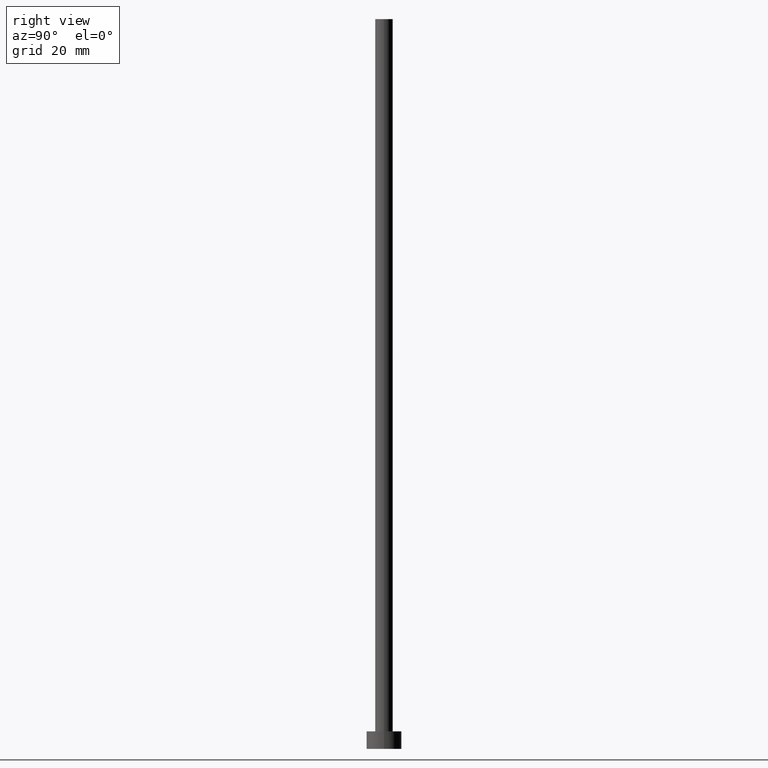
[diagram: clean part render]
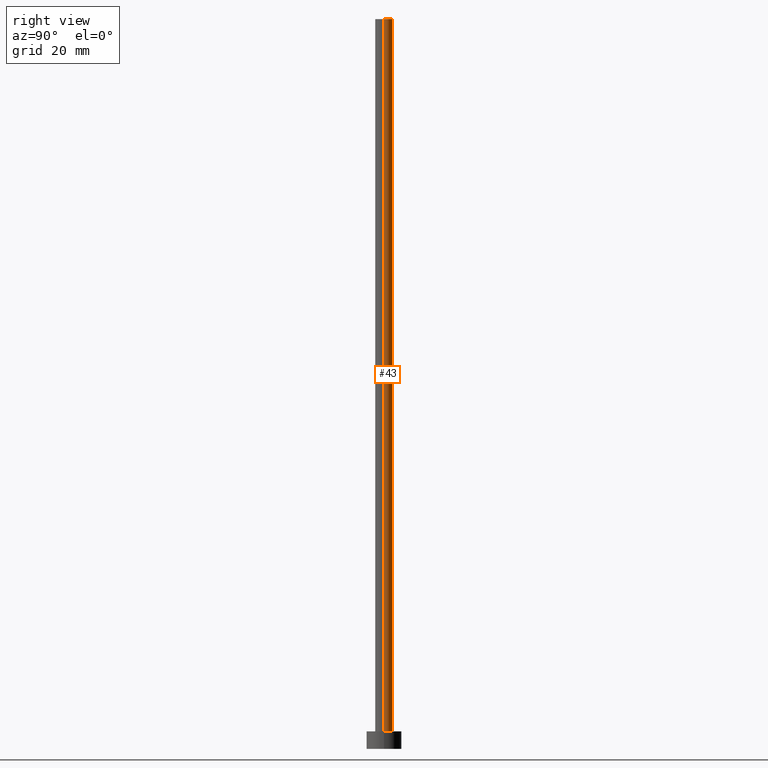
[diagram: same view with one face highlighted and labeled with its STEP entity id]
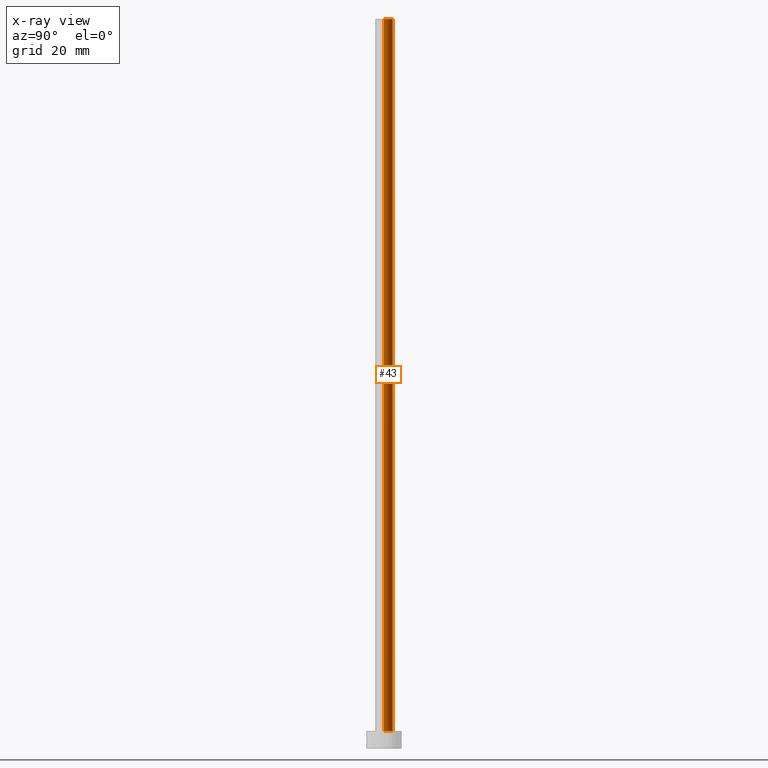
[diagram: x-ray of the same camera — body ghosted, the highlighted face saturated]
A machine part, right view. The second image highlights one B-rep face of the part: STEP entity #43.
The next image is the same camera in x-ray: the body ghosted, the highlighted face saturated — about 0% of this face is hidden behind the body in this view.
In plain terms, the highlighted cylindrical surface (edge-blend (fillet) strip) has radius 1.5 mm, axis along (-0, -0, -1).
Its self-contained STEP definition (entity closure, byte-faithful):
#13 = VECTOR ( 'NONE', #228, 1000.000000000000000 ) ;
#20 = CARTESIAN_POINT ( 'NONE',  ( 0.000000000000000000, 0.000000000000000000, 125.0000000000000000 ) ) ;
#21 = DIRECTION ( 'NONE',  ( 1.000000000000000000, 0.000000000000000000, 0.000000000000000000 ) ) ;
#23 = CARTESIAN_POINT ( 'NONE',  ( 0.000000000000000000, 0.000000000000000000, 125.0000000000000000 ) ) ;
#38 = AXIS2_PLACEMENT_3D ( 'NONE', #23, #178, #224 ) ;
#40 = EDGE_LOOP ( 'NONE', ( #188, #213, #194, #57 ) ) ;
#41 = VERTEX_POINT ( 'NONE', #58 ) ;
#43 = ADVANCED_FACE ( 'NONE', ( #239 ), #61, .T. ) ;
#44 = LINE ( 'NONE', #169, #133 ) ;
#48 = CARTESIAN_POINT ( 'NONE',  ( 1.500000000000000222, 1.836970198721029934E-16, 3.000000000000000000 ) ) ;
#55 = VERTEX_POINT ( 'NONE', #48 ) ;
#56 = CIRCLE ( 'NONE', #144, 1.500000000000000222 ) ;
#57 = ORIENTED_EDGE ( 'NONE', *, *, #190, .F. ) ;
#58 = CARTESIAN_POINT ( 'NONE',  ( -1.500000000000000222, 0.000000000000000000, 125.0000000000000000 ) ) ;
#61 = CYLINDRICAL_SURFACE ( 'NONE', #38, 1.500000000000000222 ) ;
#69 = AXIS2_PLACEMENT_3D ( 'NONE', #173, #155, #245 ) ;
#77 = CARTESIAN_POINT ( 'NONE',  ( -1.500000000000000222, 0.000000000000000000, 3.000000000000000000 ) ) ;
#90 = LINE ( 'NONE', #114, #13 ) ;
#103 = DIRECTION ( 'NONE',  ( 0.000000000000000000, 0.000000000000000000, 1.000000000000000000 ) ) ;
#110 = VERTEX_POINT ( 'NONE', #77 ) ;
#114 = CARTESIAN_POINT ( 'NONE',  ( 1.500000000000000222, 1.836970198721029934E-16, 125.0000000000000000 ) ) ;
#133 = VECTOR ( 'NONE', #240, 1000.000000000000000 ) ;
#144 = AXIS2_PLACEMENT_3D ( 'NONE', #20, #103, #21 ) ;
#145 = EDGE_CURVE ( 'NONE', #234, #41, #56, .T. ) ;
#155 = DIRECTION ( 'NONE',  ( 0.000000000000000000, 0.000000000000000000, 1.000000000000000000 ) ) ;
#164 = CIRCLE ( 'NONE', #69, 1.500000000000000222 ) ;
#169 = CARTESIAN_POINT ( 'NONE',  ( -1.500000000000000222, 0.000000000000000000, 125.0000000000000000 ) ) ;
#173 = CARTESIAN_POINT ( 'NONE',  ( 0.000000000000000000, 0.000000000000000000, 3.000000000000000000 ) ) ;
#178 = DIRECTION ( 'NONE',  ( -0.000000000000000000, -0.000000000000000000, -1.000000000000000000 ) ) ;
#186 = CARTESIAN_POINT ( 'NONE',  ( 1.500000000000000222, 1.836970198721029934E-16, 125.0000000000000000 ) ) ;
#188 = ORIENTED_EDGE ( 'NONE', *, *, #145, .F. ) ;
#190 = EDGE_CURVE ( 'NONE', #41, #110, #44, .T. ) ;
#194 = ORIENTED_EDGE ( 'NONE', *, *, #253, .T. ) ;
#213 = ORIENTED_EDGE ( 'NONE', *, *, #248, .T. ) ;
#224 = DIRECTION ( 'NONE',  ( -1.000000000000000000, 0.000000000000000000, 0.000000000000000000 ) ) ;
#228 = DIRECTION ( 'NONE',  ( -0.000000000000000000, -0.000000000000000000, -1.000000000000000000 ) ) ;
#234 = VERTEX_POINT ( 'NONE', #186 ) ;
#239 = FACE_OUTER_BOUND ( 'NONE', #40, .T. ) ;
#240 = DIRECTION ( 'NONE',  ( -0.000000000000000000, -0.000000000000000000, -1.000000000000000000 ) ) ;
#245 = DIRECTION ( 'NONE',  ( 1.000000000000000000, 0.000000000000000000, 0.000000000000000000 ) ) ;
#248 = EDGE_CURVE ( 'NONE', #234, #55, #90, .T. ) ;
#253 = EDGE_CURVE ( 'NONE', #55, #110, #164, .T. ) ;